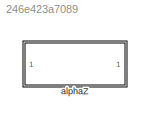
MODEL slx_246e423a7089
KIND library
CONFIG AbsTol = auto
CONFIG EnableMultiTasking = off
CONFIG FixedStep = auto
CONFIG MaxStep = auto
CONFIG MinStep = auto
CONFIG RelTol = 1e-3
CONFIG SampleTimeConstraint = Unconstrained
CONFIG Solver = VariableStepAuto
CONFIG SolverName = VariableStepAuto
CONFIG StartTime = 0.0
CONFIG StopTime = 10.0
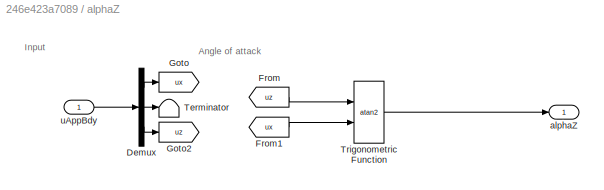
BLOCK [SubSystem] alphaZ
  MinAlgLoopOccurrences = on
  Ports = [1, 1]
  RequestExecContextInheritance = off
  TreatAsAtomicUnit = on
BLOCK [Demux] alphaZ/Demux
  Outputs = 3
  Ports = [1, 3]
BLOCK [From] alphaZ/From
  GotoTag = uz
BLOCK [From] alphaZ/From1
  GotoTag = ux
BLOCK [Goto] alphaZ/Goto
  GotoTag = ux
BLOCK [Goto] alphaZ/Goto2
  GotoTag = uz
BLOCK [Terminator] alphaZ/Terminator
BLOCK [Trigonometry] alphaZ/Trigonometric Function
  Operator = atan2
  Ports = [2, 1]
BLOCK [Outport] alphaZ/alphaZ
  VectorParamsAs1DForOutWhenUnconnected = off
BLOCK [Inport] alphaZ/uAppBdy
ANNOTATION alphaZ: Angle of attack
ANNOTATION alphaZ: Input
LINE alphaZ/Demux:1 -> alphaZ/Goto:1
LINE alphaZ/Demux:2 -> alphaZ/Terminator:1
LINE alphaZ/Demux:3 -> alphaZ/Goto2:1
LINE alphaZ/From1:1 -> alphaZ/Trigonometric Function:2
LINE alphaZ/From:1 -> alphaZ/Trigonometric Function:1
LINE alphaZ/Trigonometric Function:1 -> alphaZ/alphaZ:1
LINE alphaZ/uAppBdy:1 -> alphaZ/Demux:1
